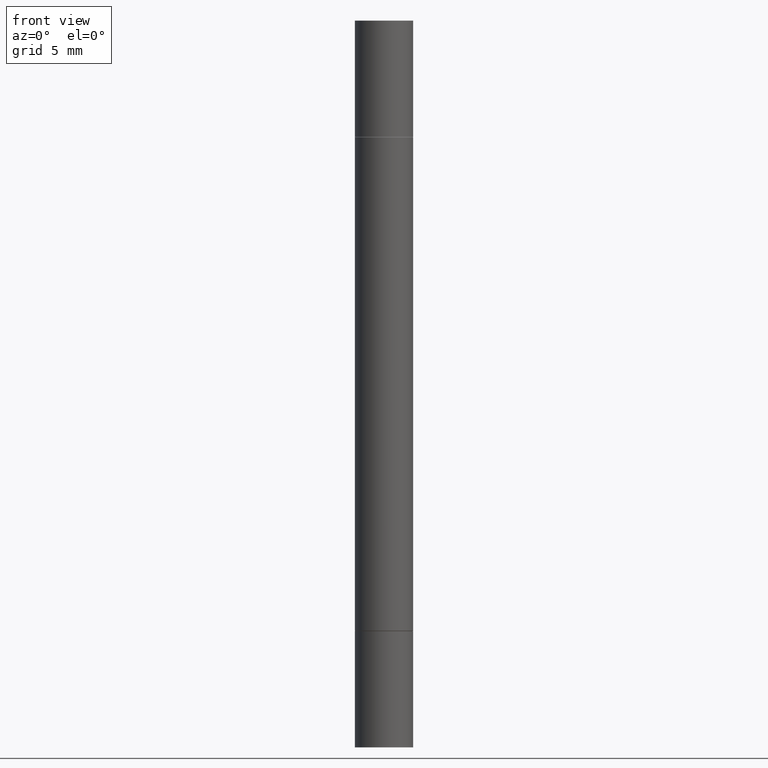
[diagram: clean part render]
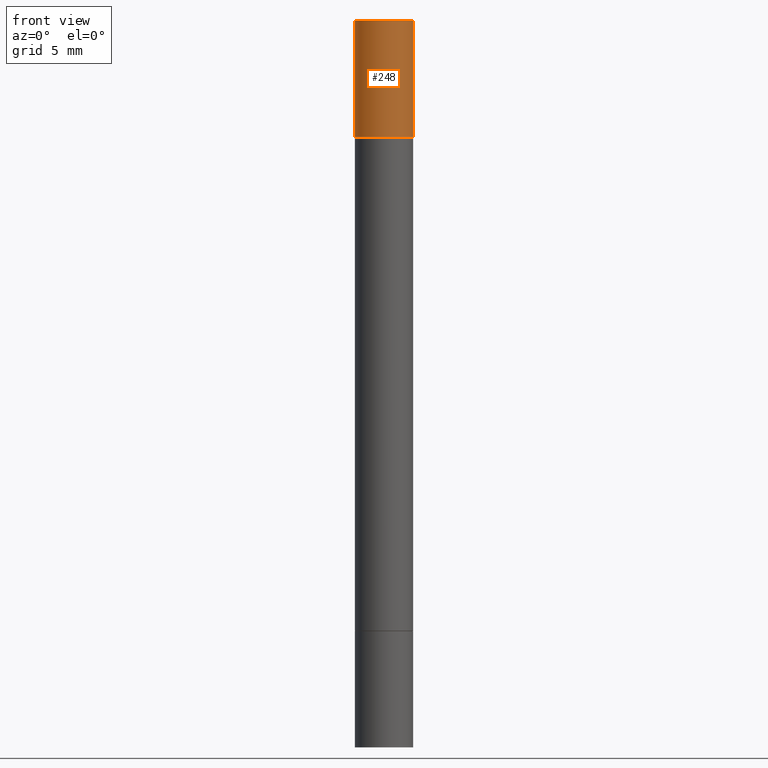
[diagram: same view with one face highlighted and labeled with its STEP entity id]
A machine part, front view. The second image highlights one B-rep face of the part: STEP entity #248.
In plain terms, the highlighted cylindrical surface (edge-blend (fillet) strip) has radius 2.0002 mm, axis along (-0, -0, -1).
Its self-contained STEP definition (entity closure, byte-faithful):
#31 = VECTOR ( 'NONE', #134, 39.37007874015748143 ) ;
#59 = CIRCLE ( 'NONE', #179, 0.07875000000000000056 ) ;
#82 = DIRECTION ( 'NONE',  ( -2.445468806185136597E-29, -3.492890411551752677E-15, -1.000000000000000000 ) ) ;
#89 = CARTESIAN_POINT ( 'NONE',  ( -0.07875000000000000056, -8.479142681445664027E-18, 2.731847993664282447E-16 ) ) ;
#90 = VECTOR ( 'NONE', #538, 39.37007874015748143 ) ;
#108 = VERTEX_POINT ( 'NONE', #653 ) ;
#117 = FACE_OUTER_BOUND ( 'NONE', #357, .T. ) ;
#134 = DIRECTION ( 'NONE',  ( -2.445468806185136877E-29, -3.492890411551753071E-15, -1.000000000000000000 ) ) ;
#171 = LINE ( 'NONE', #382, #90 ) ;
#175 = CARTESIAN_POINT ( 'NONE',  ( -0.07875000000000000056, -8.479142681445664027E-18, -0.3149999999999997802 ) ) ;
#179 = AXIS2_PLACEMENT_3D ( 'NONE', #232, #548, #440 ) ;
#229 = EDGE_CURVE ( 'NONE', #424, #605, #171, .T. ) ;
#232 = CARTESIAN_POINT ( 'NONE',  ( 4.043582671027123201E-29, -1.098873599825354270E-15, -0.3149999999999997802 ) ) ;
#248 = ADVANCED_FACE ( 'NONE', ( #117 ), #325, .T. ) ;
#261 = DIRECTION ( 'NONE',  ( 1.000000000000000000, -6.982962677686265922E-15, 0.000000000000000000 ) ) ;
#310 = CARTESIAN_POINT ( 'NONE',  ( 4.813905344975441835E-29, 1.386879813447681415E-18, 2.731847993664263218E-16 ) ) ;
#325 = CYLINDRICAL_SURFACE ( 'NONE', #590, 0.07875000000000000056 ) ;
#326 = CARTESIAN_POINT ( 'NONE',  ( 0.07875000000000000056, -7.424276206193971655E-15, -1.968499999999999694 ) ) ;
#335 = EDGE_CURVE ( 'NONE', #108, #504, #598, .T. ) ;
#357 = EDGE_LOOP ( 'NONE', ( #375, #465, #475, #639 ) ) ;
#365 = AXIS2_PLACEMENT_3D ( 'NONE', #310, #519, #261 ) ;
#375 = ORIENTED_EDGE ( 'NONE', *, *, #560, .F. ) ;
#382 = CARTESIAN_POINT ( 'NONE',  ( -0.07875000000000000056, -6.334103678001670420E-15, -1.968499999999999694 ) ) ;
#391 = CARTESIAN_POINT ( 'NONE',  ( 0.000000000000000000, -6.874367895326177521E-15, -1.968499999999999694 ) ) ;
#424 = VERTEX_POINT ( 'NONE', #89 ) ;
#440 = DIRECTION ( 'NONE',  ( 1.000000000000000000, -6.982962677686268288E-15, 0.000000000000000000 ) ) ;
#465 = ORIENTED_EDGE ( 'NONE', *, *, #229, .T. ) ;
#475 = ORIENTED_EDGE ( 'NONE', *, *, #640, .T. ) ;
#495 = DIRECTION ( 'NONE',  ( 1.000000000000000000, -6.982962677686261977E-15, 0.000000000000000000 ) ) ;
#504 = VERTEX_POINT ( 'NONE', #660 ) ;
#519 = DIRECTION ( 'NONE',  ( 2.445468806185136597E-29, 3.492890411551752677E-15, 1.000000000000000000 ) ) ;
#538 = DIRECTION ( 'NONE',  ( -2.445468806185136877E-29, -3.492890411551753071E-15, -1.000000000000000000 ) ) ;
#548 = DIRECTION ( 'NONE',  ( 2.445468806185136597E-29, 3.492890411551752677E-15, 1.000000000000000000 ) ) ;
#560 = EDGE_CURVE ( 'NONE', #424, #108, #620, .T. ) ;
#590 = AXIS2_PLACEMENT_3D ( 'NONE', #391, #82, #495 ) ;
#598 = LINE ( 'NONE', #326, #31 ) ;
#605 = VERTEX_POINT ( 'NONE', #175 ) ;
#620 = CIRCLE ( 'NONE', #365, 0.07875000000000000056 ) ;
#639 = ORIENTED_EDGE ( 'NONE', *, *, #335, .F. ) ;
#640 = EDGE_CURVE ( 'NONE', #605, #504, #59, .T. ) ;
#653 = CARTESIAN_POINT ( 'NONE',  ( 0.07875000000000000056, -5.485214310543458561E-16, 2.731847993664263218E-16 ) ) ;
#660 = CARTESIAN_POINT ( 'NONE',  ( 0.07875000000000000056, -1.648781910693147813E-15, -0.3149999999999997802 ) ) ;